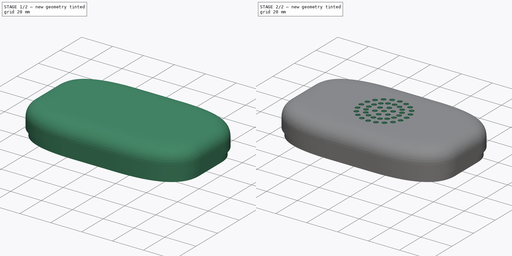
[diagram: build sequence overview — one tinted view per stage of 2, left to right]
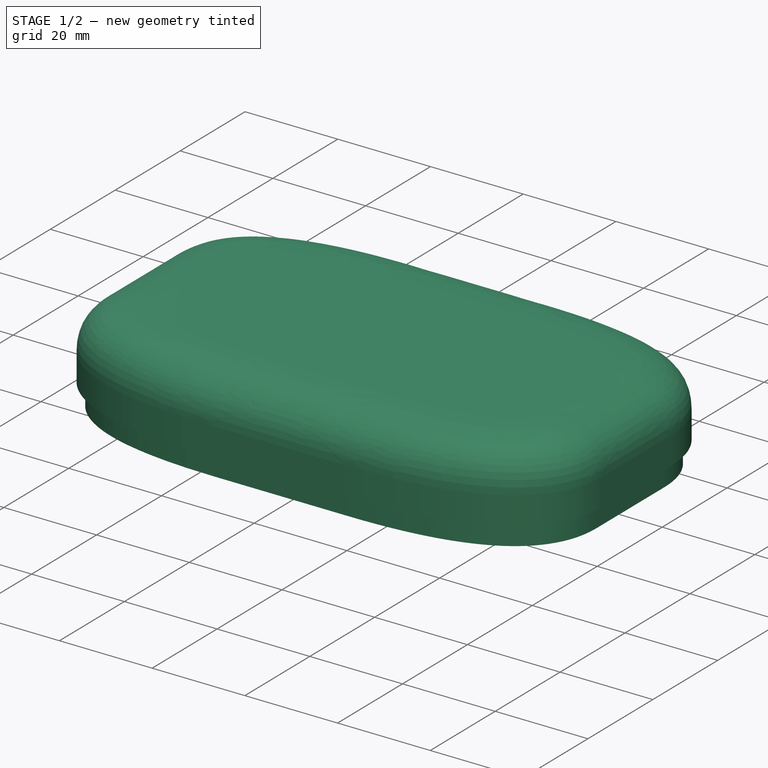
[diagram: stage 1 of 2 — iso view after this stage's code; geometry added in this stage tinted green]
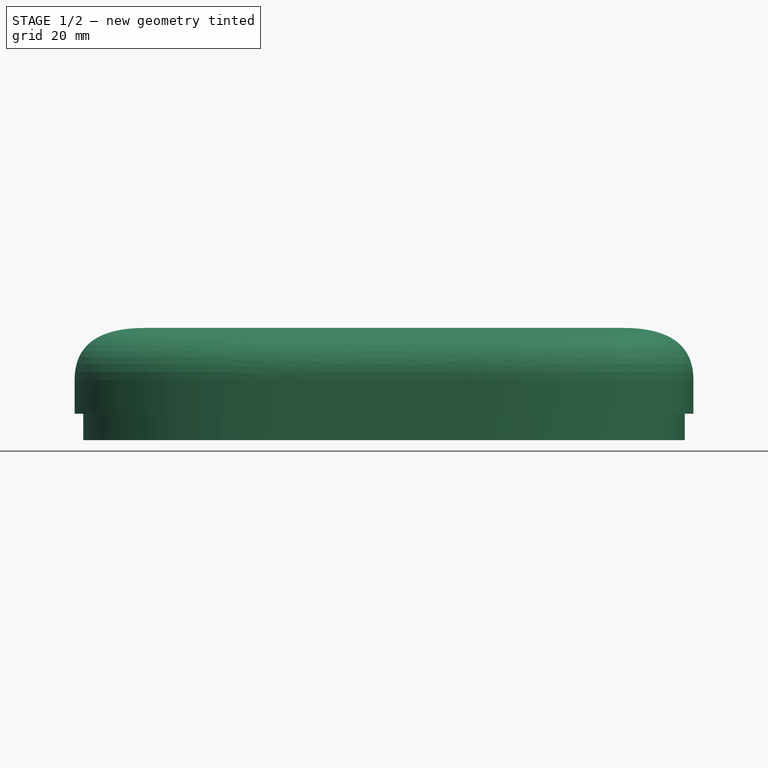
[diagram: stage 1 of 2 — front view after this stage's code; geometry added in this stage tinted green]
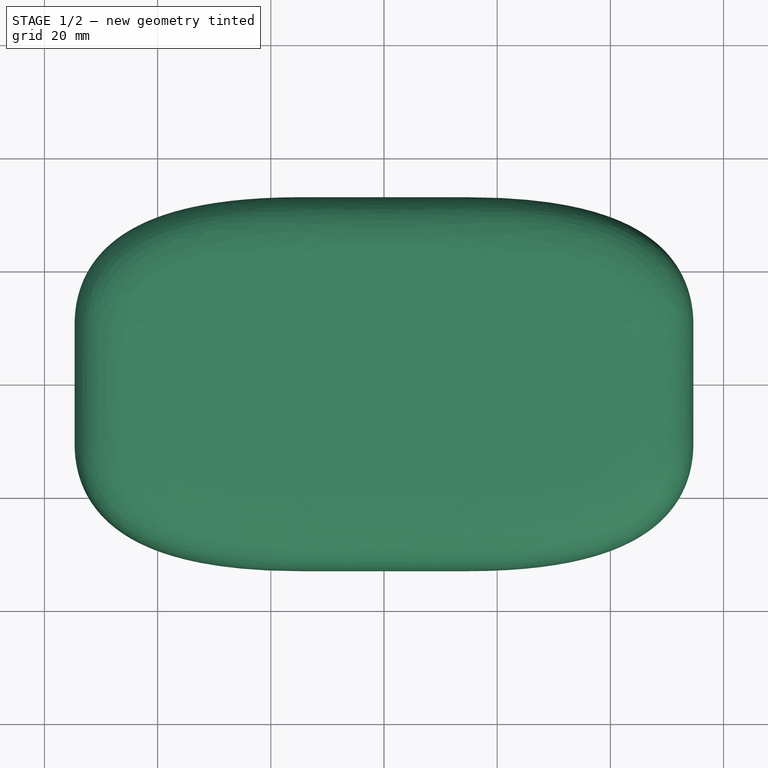
[diagram: stage 1 of 2 — top view after this stage's code; geometry added in this stage tinted green]
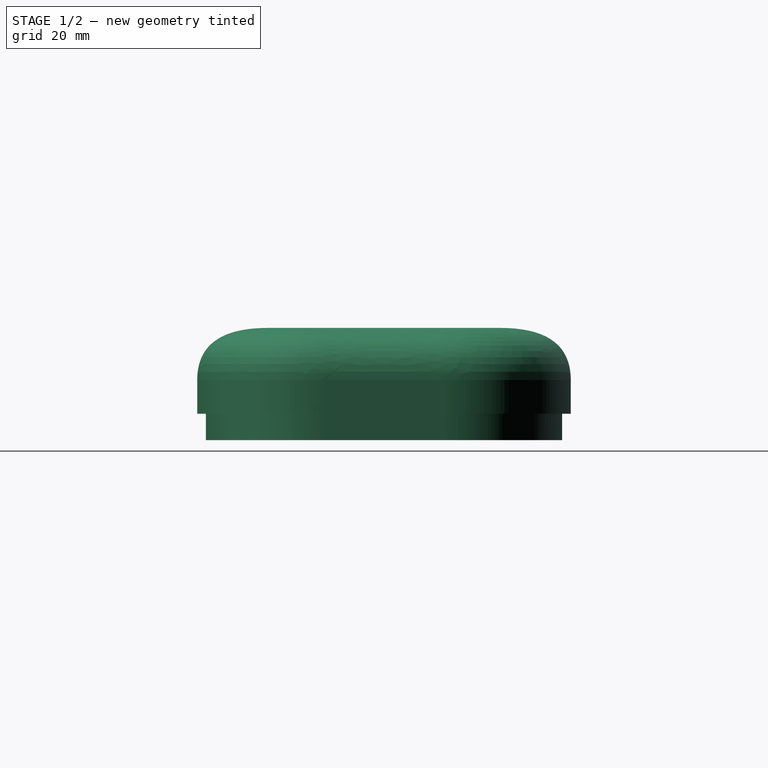
[diagram: stage 1 of 2 — right view after this stage's code; geometry added in this stage tinted green]
FCSTD DOCUMENT  (FreeCAD 1.0R39319 (Git))
Label: housing
License: All rights reserved
LicenseURL: https://en.wikipedia.org/wiki/All_rights_reserved
objects: Sketcher::SketchObject×3, PartDesign::Mirrored×2, PartDesign::AdditivePipe×1, PartDesign::Pad×1, PartDesign::Pocket×1, PartDesign::MultiTransform×1, PartDesign::Body×1
note: 22 computed .brp shape members not serialized (recipe doc carries the construction recipe); baked Part::Feature solids carry a one-line shape summary decoded from their .brp

FEATURE [Sketcher::SketchObject] Sketch
  ArcFitTolerance = 1e-06
  AttachmentSupport = -> [XY_Plane]
  FullyConstrained = false
  MakeInternals = false
  MapMode = 5
  sketch-geometry (25):
    g0: LineSegment StartX=-14.5265 StartY=30 StartZ=0 EndX=14.5265 EndY=30 EndZ=0
    g1: LineSegment StartX=51.6733 StartY=10.4024 StartZ=0 EndX=51.6733 EndY=-10.4024 EndZ=0
    g2: LineSegment StartX=14.5265 StartY=-30 StartZ=0 EndX=-14.5265 EndY=-30 EndZ=0
    g3: Circle [constr] CenterX=51.6733 CenterY=30 CenterZ=0 NormalX=0 NormalY=0 NormalZ=1 AngleXU=0 Radius=0.849394
    g4: BSplineCurve PolesCount=3 KnotsCount=2 Degree=2 IsPeriodic=0
    g5: GeomPoint [constr] X=14.5265 Y=30 Z=0
    g6: GeomPoint [constr] X=51.6733 Y=10.4024 Z=0
    g7: Circle [constr] CenterX=51.6733 CenterY=-10.4024 CenterZ=0 NormalX=0 NormalY=0 NormalZ=1 AngleXU=0 Radius=1
    g8: Circle [constr] CenterX=51.6733 CenterY=-30 CenterZ=0 NormalX=0 NormalY=0 NormalZ=1 AngleXU=0 Radius=1
    g9: Circle [constr] CenterX=14.5265 CenterY=-30 CenterZ=0 NormalX=0 NormalY=0 NormalZ=1 AngleXU=0 Radius=1
    g10: BSplineCurve PolesCount=3 KnotsCount=2 Degree=2 IsPeriodic=0
    g11: GeomPoint [constr] X=51.6733 Y=-10.4024 Z=0
    g12: GeomPoint [constr] X=14.5265 Y=-30 Z=0
    g13: LineSegment StartX=-51.6733 StartY=10.4024 StartZ=0 EndX=-51.6733 EndY=-10.4024 EndZ=0
    g14: Circle [constr] CenterX=-51.6733 CenterY=-10.4024 CenterZ=0 NormalX=0 NormalY=0 NormalZ=1 AngleXU=0 Radius=1
    g15: Circle [constr] CenterX=-51.6733 CenterY=-30 CenterZ=0 NormalX=0 NormalY=0 NormalZ=1 AngleXU=0 Radius=1
    g16: Circle [constr] CenterX=-14.5265 CenterY=-30 CenterZ=0 NormalX=0 NormalY=0 NormalZ=1 AngleXU=0 Radius=1
    g17: BSplineCurve PolesCount=3 KnotsCount=2 Degree=2 IsPeriodic=0
    g18: GeomPoint [constr] X=-51.6733 Y=-10.4024 Z=0
    g19: GeomPoint [constr] X=-14.5265 Y=-30 Z=0
    g20: Circle [constr] CenterX=-51.6733 CenterY=10.4024 CenterZ=0 NormalX=0 NormalY=0 NormalZ=1 AngleXU=0 Radius=0.989207
    g21: Circle [constr] CenterX=-51.6733 CenterY=30 CenterZ=0 NormalX=0 NormalY=0 NormalZ=1 AngleXU=0 Radius=0.989207
    g22: BSplineCurve PolesCount=3 KnotsCount=2 Degree=2 IsPeriodic=0
    g23: GeomPoint [constr] X=-51.6733 Y=10.4024 Z=0
    g24: GeomPoint [constr] X=-14.5265 Y=30 Z=0
  constraints (48):
    c: Horizontal(g0)
    c: InternalAlignment(g3,g4)
    c: InternalAlignment(g5,g4)
    c: InternalAlignment(g6,g4)
    c: Equal(g7,g8)
    c: Equal(g7,g9)
    c: InternalAlignment(g7,g10)
    c: InternalAlignment(g8,g10)
    c: InternalAlignment(g9,g10)
    c: InternalAlignment(g11,g10)
    c: InternalAlignment(g12,g10)
    c: Coincident(g7,g1)
    c: Coincident(g9,g2)
    c: Horizontal(g3,g4)
    c: Vertical(g3,g4)
    c: Vertical(g8,g10)
    c: Horizontal(g8,g10)
    c: Vertical(g4,g10)
    c: Equal(g0,g2)
    c: Equal(g1,g13)
    c: Equal(g14,g15)
    c: Equal(g14,g16)
    c: InternalAlignment(g14,g17)
    c: InternalAlignment(g15,g17)
    c: InternalAlignment(g16,g17)
    c: InternalAlignment(g18,g17)
    c: InternalAlignment(g19,g17)
    c: Coincident(g14,g13)
    c: Coincident(g16,g2)
    c: Horizontal(g15,g17)
    c: Vertical(g17,g15)
    c: Symmetric(g0,g10,g-1)
    c: Coincident(g0,g4)
    c: Horizontal(g2)
    c: Symmetric(g17,g1,g-1)
    c: Coincident(g1,g4)
    c: Vertical(g1)
    c: Equal(g20,g21)
    c: InternalAlignment(g20,g22)
    c: InternalAlignment(g21,g22)
    c: InternalAlignment(g23,g22)
    c: InternalAlignment(g24,g22)
    c: Coincident(g20,g13)
    c: Coincident(g0,g22)
    c: Horizontal(g21,g0)
    c: Vertical(g21,g22)
    c: Symmetric(g22,g17,g-1)
    c: DistanceY(g-1,g0) = 30
FEATURE [Sketcher::SketchObject] Sketch001
  ArcFitTolerance = 1e-06
  AttachmentOffset = pos=(30,0,0) rot=(0,0,1;0rad)
  AttachmentSupport = -> [YZ_Plane]
  FullyConstrained = false
  MakeInternals = false
  MapMode = 5
  Placement = pos=(0,30,0) rot=(0.57735,0.57735,0.57735;2.0944rad)
  sketch-geometry (19):
    g0: LineSegment StartX=0 StartY=-4.65873 StartZ=0 EndX=0 EndY=6.0166 EndZ=0
    g1: LineSegment StartX=-9.48361 StartY=12.1677 StartZ=0 EndX=-9.48361 EndY=15.1677 EndZ=0
    g2: LineSegment StartX=3 StartY=5.95911 StartZ=0 EndX=3 EndY=0 EndZ=0
    g3: LineSegment StartX=3 StartY=0 StartZ=0 EndX=1.47266 EndY=0 EndZ=0
    g4: LineSegment StartX=1.47266 StartY=0 StartZ=0 EndX=1.47266 EndY=-4.65873 EndZ=0
    g5: LineSegment StartX=1.47266 StartY=-4.65873 StartZ=0 EndX=0 EndY=-4.65873 EndZ=0
    g6: Circle [constr] CenterX=-9.48361 CenterY=12.1677 CenterZ=0 NormalX=0 NormalY=0 NormalZ=1 AngleXU=0 Radius=1
    g7: Circle [constr] CenterX=0 CenterY=12.1677 CenterZ=0 NormalX=0 NormalY=0 NormalZ=1 AngleXU=0 Radius=1
    g8: Circle [constr] CenterX=0 CenterY=6.0166 CenterZ=0 NormalX=0 NormalY=0 NormalZ=1 AngleXU=0 Radius=1
    g9: BSplineCurve PolesCount=3 KnotsCount=2 Degree=2 IsPeriodic=0
    g10: GeomPoint [constr] X=-9.48361 Y=12.1677 Z=0
    g11: GeomPoint [constr] X=0 Y=6.0166 Z=0
    g12: Circle [constr] CenterX=-9.48361 CenterY=15.1677 CenterZ=0 NormalX=0 NormalY=0 NormalZ=1 AngleXU=0 Radius=1
    g13: Circle [constr] CenterX=3 CenterY=15.1677 CenterZ=0 NormalX=0 NormalY=0 NormalZ=1 AngleXU=0 Radius=1
    g14: Circle [constr] CenterX=3 CenterY=5.95911 CenterZ=0 NormalX=0 NormalY=0 NormalZ=1 AngleXU=0 Radius=1
    g15: BSplineCurve PolesCount=3 KnotsCount=2 Degree=2 IsPeriodic=0
    g16: GeomPoint [constr] X=-9.48361 Y=15.1677 Z=0
    g17: GeomPoint [constr] X=3 Y=5.95911 Z=0
    g18: LineSegment [constr] StartX=3 StartY=0 StartZ=0 EndX=0 EndY=0 EndZ=0
  constraints (38):
    c: PointOnObject(g0,g-2)
    c: PointOnObject(g0,g-2)
    c: Vertical(g1)
    c: PointOnObject(g2,g-1)
    c: Vertical(g2)
    c: Coincident(g2,g3)
    c: PointOnObject(g3,g-1)
    c: Coincident(g3,g4)
    c: Vertical(g4)
    c: Coincident(g4,g5)
    c: Coincident(g5,g0)
    c: Horizontal(g5)
    c: Equal(g6,g7)
    c: Equal(g6,g8)
    c: InternalAlignment(g6,g9)
    c: InternalAlignment(g7,g9)
    c: InternalAlignment(g8,g9)
    c: InternalAlignment(g10,g9)
    c: InternalAlignment(g11,g9)
    c: Coincident(g6,g1)
    c: PointOnObject(g7,g-2)
    c: Coincident(g8,g0)
    c: Equal(g12,g13)
    c: Equal(g12,g14)
    c: InternalAlignment(g12,g15)
    c: InternalAlignment(g13,g15)
    c: InternalAlignment(g14,g15)
    c: InternalAlignment(g16,g15)
    c: InternalAlignment(g17,g15)
    c: Coincident(g12,g1)
    c: Coincident(g14,g2)
    c: Coincident(g2,g18)
    c: Coincident(g18,g-1)
    c: Equal(g18,g1)
    c: Horizontal(g13,g15)
    c: Horizontal(g7,g9)
    c: Vertical(g13,g15)
    c: DistanceY(g1,g1) = 3
FEATURE [PartDesign::AdditivePipe] AdditivePipe
  AuxilleryCurvelinear = true
  AuxillerySpineTangent = false
  Binormal = (0,0,0)
  Mode = 0
  Placement = pos=(0,0,0) rot=(1,1,1;2.0944rad)
  Profile = -> Sketch001
  Refine = true
  Spine = -> Sketch
  SpineTangent = false
  Suppressed = false
  Transformation = 0
  Transition = 0
FEATURE [PartDesign::Pad] Pad
  BaseFeature = -> AdditivePipe
  Direction = (0,4e-16,1)
  Length = 3
  Length2 = 10
  Placement = pos=(0,0,0) rot=(1,1,1;2.0944rad)
  Profile = -> AdditivePipe [Edge73,Edge84,Edge9,Edge18,Edge29,Edge40,Edge51,Edge62]
  Refine = true
  Reversed = true
  Suppressed = false
  Type = 0
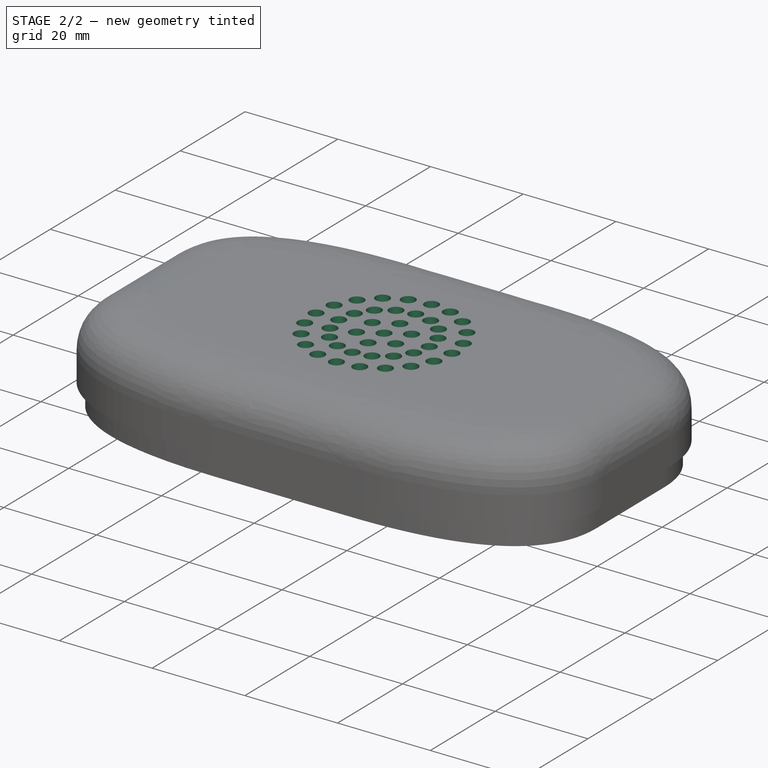
[diagram: stage 2 of 2 — iso view after this stage's code; geometry added in this stage tinted green]
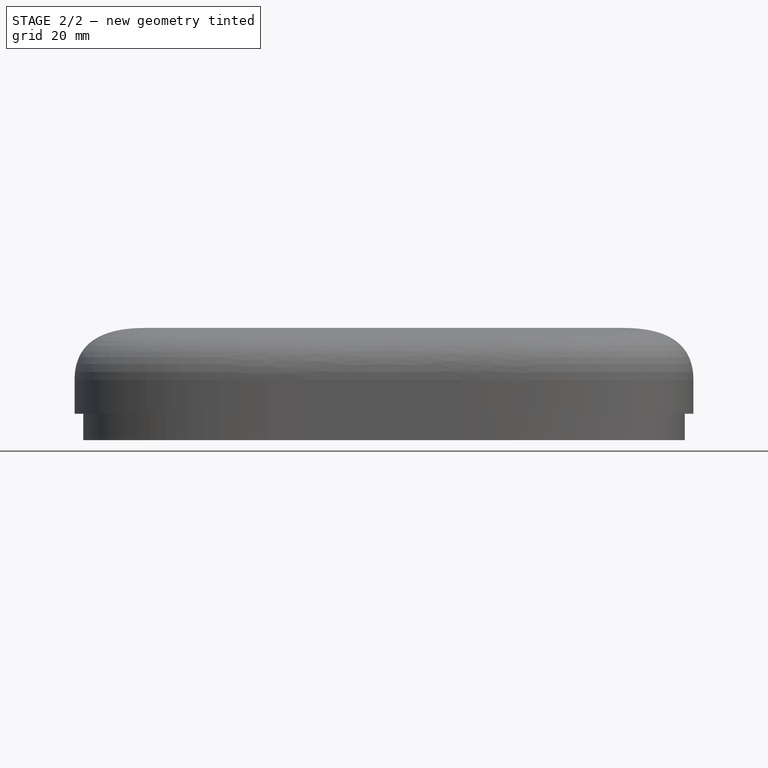
[diagram: stage 2 of 2 — front view after this stage's code; geometry added in this stage tinted green]
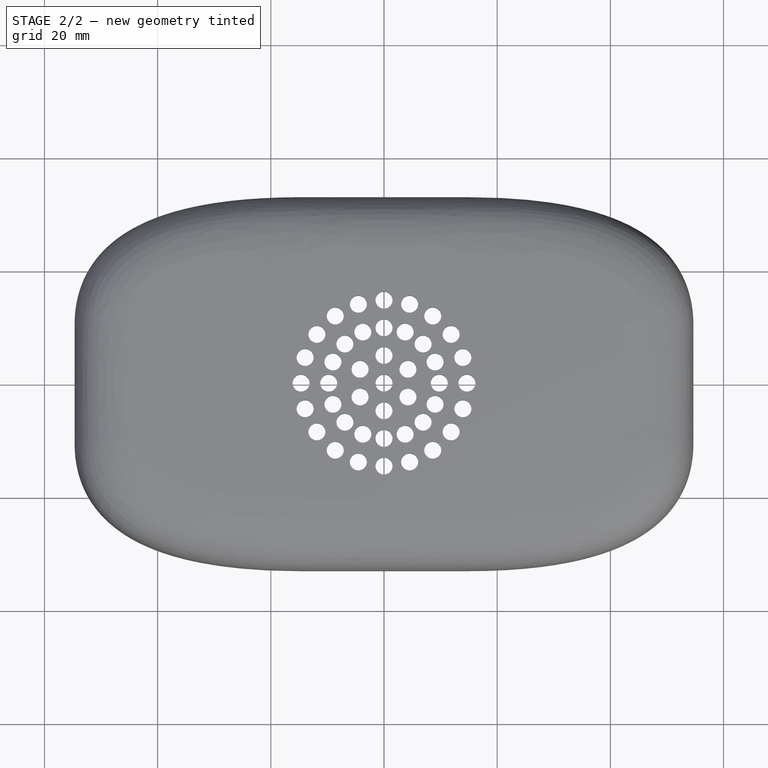
[diagram: stage 2 of 2 — top view after this stage's code; geometry added in this stage tinted green]
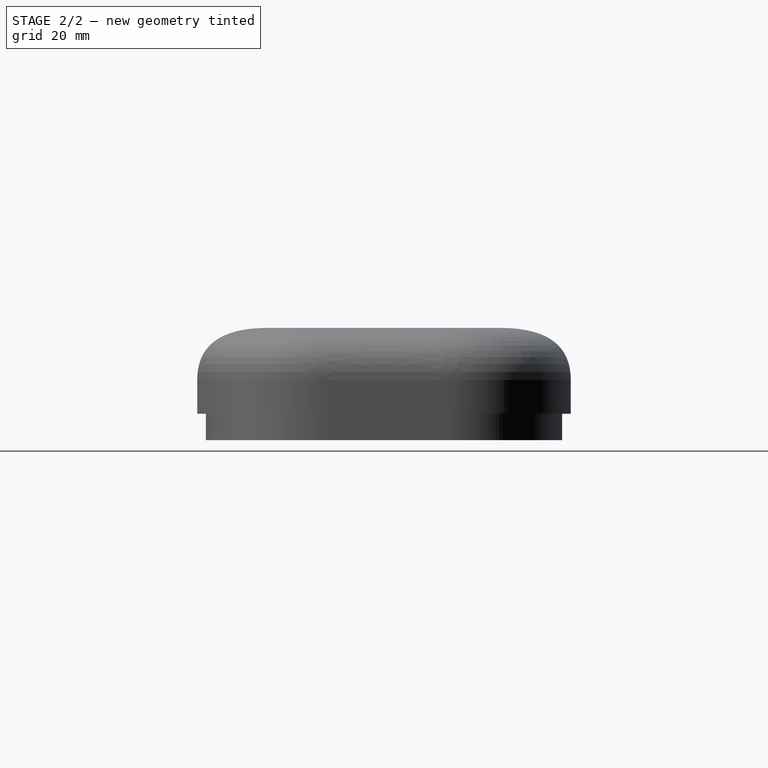
[diagram: stage 2 of 2 — right view after this stage's code; geometry added in this stage tinted green]
FEATURE [Sketcher::SketchObject] Sketch002
  ArcFitTolerance = 1e-06
  AttachmentSupport = -> [XY_Plane]
  FullyConstrained = false
  MakeInternals = false
  MapMode = 5
  sketch-geometry (32):
    g0: Circle CenterX=0 CenterY=0 CenterZ=0 NormalX=0 NormalY=0 NormalZ=1 AngleXU=0 Radius=1.5
    g1: Circle CenterX=0 CenterY=4.88548 CenterZ=0 NormalX=0 NormalY=0 NormalZ=1 AngleXU=0 Radius=1.5
    g2: Circle CenterX=6e-16 CenterY=9.77097 CenterZ=0 NormalX=0 NormalY=0 NormalZ=1 AngleXU=0 Radius=1.5
    g3: Circle CenterX=9e-16 CenterY=14.6565 CenterZ=0 NormalX=0 NormalY=0 NormalZ=1 AngleXU=0 Radius=1.5
    g4: ArcOfCircle [constr] CenterX=0 CenterY=0 CenterZ=0 NormalX=0 NormalY=0 NormalZ=1 AngleXU=0 Radius=4.88548 StartAngle=0 EndAngle=1.5708
    g5: ArcOfCircle [constr] CenterX=0 CenterY=0 CenterZ=0 NormalX=0 NormalY=0 NormalZ=1 AngleXU=0 Radius=9.77097 StartAngle=0 EndAngle=1.5708
    g6: ArcOfCircle [constr] CenterX=0 CenterY=0 CenterZ=0 NormalX=0 NormalY=0 NormalZ=1 AngleXU=0 Radius=14.6565 StartAngle=0 EndAngle=1.5708
    g7: LineSegment [constr] StartX=9e-16 StartY=14.6565 StartZ=0 EndX=6e-16 EndY=9.77097 EndZ=0
    g8: LineSegment [constr] StartX=6e-16 StartY=9.77097 StartZ=0 EndX=0 EndY=4.88548 EndZ=0
    g9: LineSegment [constr] StartX=0 StartY=4.88548 StartZ=0 EndX=0 EndY=0 EndZ=0
    g10: Circle CenterX=4.52909 CenterY=13.9391 CenterZ=0 NormalX=0 NormalY=0 NormalZ=1 AngleXU=0 Radius=1.5
    g11: Circle CenterX=8.61485 CenterY=11.8573 CenterZ=0 NormalX=0 NormalY=0 NormalZ=1 AngleXU=0 Radius=1.5
    g12: Circle CenterX=11.8573 CenterY=8.61485 CenterZ=0 NormalX=0 NormalY=0 NormalZ=1 AngleXU=0 Radius=1.5
    g13: Circle CenterX=13.9391 CenterY=4.52909 CenterZ=0 NormalX=0 NormalY=0 NormalZ=1 AngleXU=0 Radius=1.5
    g14: LineSegment [constr] StartX=9e-16 StartY=14.6565 StartZ=0 EndX=4.52909 EndY=13.9391 EndZ=0
    g15: LineSegment [constr] StartX=4.52909 StartY=13.9391 StartZ=0 EndX=8.61485 EndY=11.8573 EndZ=0
    g16: LineSegment [constr] StartX=8.61485 StartY=11.8573 StartZ=0 EndX=11.8573 EndY=8.61485 EndZ=0
    g17: LineSegment [constr] StartX=11.8573 StartY=8.61485 StartZ=0 EndX=13.9391 EndY=4.52909 EndZ=0
    g18: LineSegment [constr] StartX=13.9391 StartY=4.52909 StartZ=0 EndX=14.6565 EndY=0 EndZ=0
    g19: Circle CenterX=3.73919 CenterY=9.0272 CenterZ=0 NormalX=0 NormalY=0 NormalZ=1 AngleXU=0 Radius=1.5
    g20: Circle CenterX=6.90912 CenterY=6.90912 CenterZ=0 NormalX=0 NormalY=0 NormalZ=1 AngleXU=0 Radius=1.5
    g21: Circle CenterX=9.0272 CenterY=3.73919 CenterZ=0 NormalX=0 NormalY=0 NormalZ=1 AngleXU=0 Radius=1.5
    g22: LineSegment [constr] StartX=6e-16 StartY=9.77097 StartZ=0 EndX=3.73919 EndY=9.0272 EndZ=0
    g23: LineSegment [constr] StartX=3.73919 StartY=9.0272 StartZ=0 EndX=6.90912 EndY=6.90912 EndZ=0
    g24: LineSegment [constr] StartX=6.90912 StartY=6.90912 StartZ=0 EndX=9.0272 EndY=3.73919 EndZ=0
    g25: LineSegment [constr] StartX=9.0272 StartY=3.73919 StartZ=0 EndX=9.77097 EndY=0 EndZ=0
    g26: LineSegment [constr] StartX=0 StartY=4.88548 StartZ=0 EndX=2.44274 EndY=4.23095 EndZ=0
    g27: LineSegment [constr] StartX=2.44274 StartY=4.23095 StartZ=0 EndX=4.23095 EndY=2.44274 EndZ=0
    g28: LineSegment [constr] StartX=4.23095 StartY=2.44274 StartZ=0 EndX=4.88548 EndY=0 EndZ=0
    g29: Circle CenterX=4.23095 CenterY=2.44274 CenterZ=0 NormalX=0 NormalY=0 NormalZ=1 AngleXU=0 Radius=1.5
    g30: Circle CenterX=9.77097 CenterY=0 CenterZ=0 NormalX=0 NormalY=0 NormalZ=1 AngleXU=0 Radius=1.5
    g31: Circle CenterX=14.6565 CenterY=0 CenterZ=0 NormalX=0 NormalY=0 NormalZ=1 AngleXU=0 Radius=1.5
  constraints (78):
    c: Diameter(g0) = 3
    c: PointOnObject(g1,g-2)
    c: PointOnObject(g2,g-2)
    c: Coincident(g4,g0)
    c: Coincident(g4,g1)
    c: Coincident(g5,g0)
    c: Coincident(g5,g2)
    c: PointOnObject(g5,g-1)
    c: Coincident(g6,g0)
    c: PointOnObject(g6,g-2)
    c: PointOnObject(g6,g-1)
    c: Coincident(g3,g6)
    c: Coincident(g0,g-1)
    c: Equal(g1,g2)
    c: Equal(g2,g3)
    c: Equal(g3,g0)
    c: Coincident(g7,g3)
    c: Coincident(g7,g2)
    c: Coincident(g7,g8)
    c: Coincident(g8,g1)
    c: Coincident(g8,g9)
    c: Coincident(g9,g0)
    c: Equal(g7,g8)
    c: Equal(g8,g9)
    c: Equal(g10,g0)
    c: PointOnObject(g10,g6)
    c: Equal(g11,g0)
    c: PointOnObject(g11,g6)
    c: PointOnObject(g12,g6)
    c: PointOnObject(g13,g6)
    c: Coincident(g14,g3)
    c: Coincident(g14,g10)
    c: Coincident(g14,g15)
    c: Coincident(g15,g11)
    c: Coincident(g15,g16)
    c: Coincident(g16,g12)
    c: Coincident(g16,g17)
    c: Coincident(g17,g13)
    c: Coincident(g17,g18)
    c: Coincident(g18,g6)
    c: Equal(g14,g15)
    c: Equal(g15,g16)
    c: Equal(g16,g17)
    c: Equal(g17,g18)
    c: PointOnObject(g19,g5)
    c: PointOnObject(g20,g5)
    c: PointOnObject(g21,g5)
    c: Coincident(g22,g2)
    c: Coincident(g22,g19)
    c: Coincident(g22,g23)
    c: Coincident(g23,g20)
    c: Coincident(g23,g24)
    c: Coincident(g24,g21)
    c: Coincident(g24,g25)
    c: Coincident(g25,g5)
    c: Equal(g25,g24)
    c: Equal(g24,g23)
    c: Equal(g23,g22)
    c: Coincident(g26,g1)
    c: Coincident(g26,g27)
    c: Equal(g27,g26)
    c: PointOnObject(g26,g4)
    c: PointOnObject(g27,g4)
    c: PointOnObject(g4,g-1)
    c: Coincident(g27,g28)
    c: Coincident(g28,g4)
    c: Coincident(g29,g27)
    c: Equal(g27,g28)
    c: Coincident(g30,g5)
    c: Coincident(g31,g6)
    c: Equal(g31,g13)
    c: Equal(g13,g12)
    c: Equal(g30,g21)
    c: Equal(g21,g20)
    c: Equal(g29,g1)
    c: Equal(g19,g0)
    c: Equal(g20,g0)
    c: Equal(g12,g0)
FEATURE [PartDesign::Pocket] Pocket
  BaseFeature = -> Pad
  Direction = (0,0,-1)
  Length = 5
  Length2 = 5
  Placement = pos=(0,0,0) rot=(1,1,1;2.0944rad)
  Profile = -> Sketch002
  ReferenceAxis = -> Sketch002 [N_Axis]
  Refine = true
  Reversed = true
  Suppressed = false
  Type = 1
FEATURE [PartDesign::Mirrored] Mirrored
  MirrorPlane = -> YZ_Plane
  Placement = pos=(0,0,0) rot=(1,1,1;2.0944rad)
  Refine = true
  Suppressed = false
  TransformMode = 0
FEATURE [PartDesign::Mirrored] Mirrored001
  MirrorPlane = -> XZ_Plane
  Placement = pos=(0,0,0) rot=(1,1,1;2.0944rad)
  Refine = true
  Suppressed = false
  TransformMode = 0
FEATURE [PartDesign::MultiTransform] MultiTransform
  BaseFeature = -> Pocket
  Originals = -> [Pocket]
  Placement = pos=(0,0,0) rot=(1,1,1;2.0944rad)
  Refine = true
  Suppressed = false
  TransformMode = 0
  Transformations = -> [Mirrored,Mirrored001]
FEATURE [PartDesign::Body] Body
  AllowCompound = false
  Group = -> [Sketch,Sketch001,AdditivePipe,Pad,Sketch002,Pocket,MultiTransform,Mirrored,Mirrored001]
  Origin = -> Origin
  Tip = -> MultiTransform
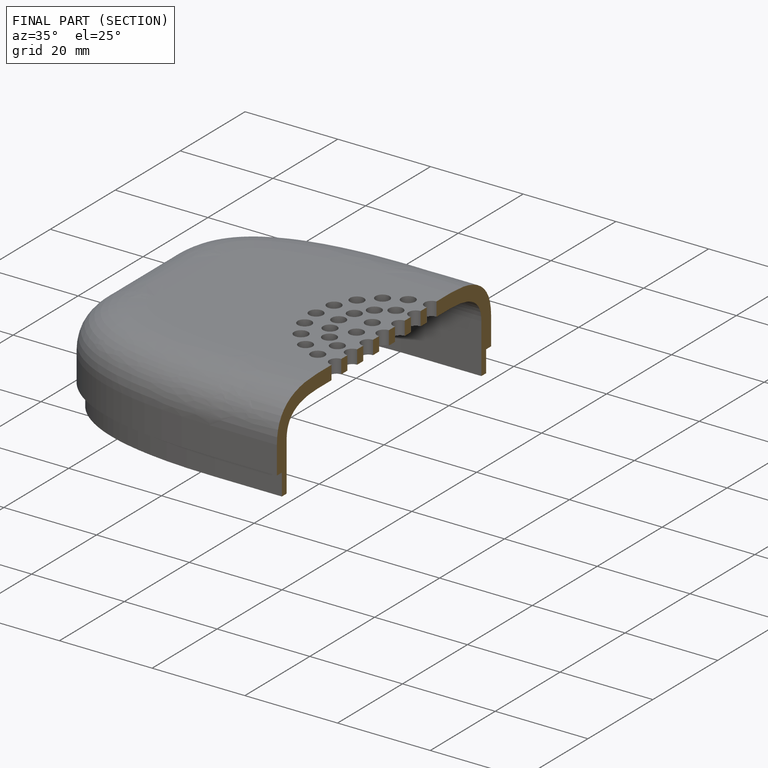
[diagram: finished part — half-section view (interior)]
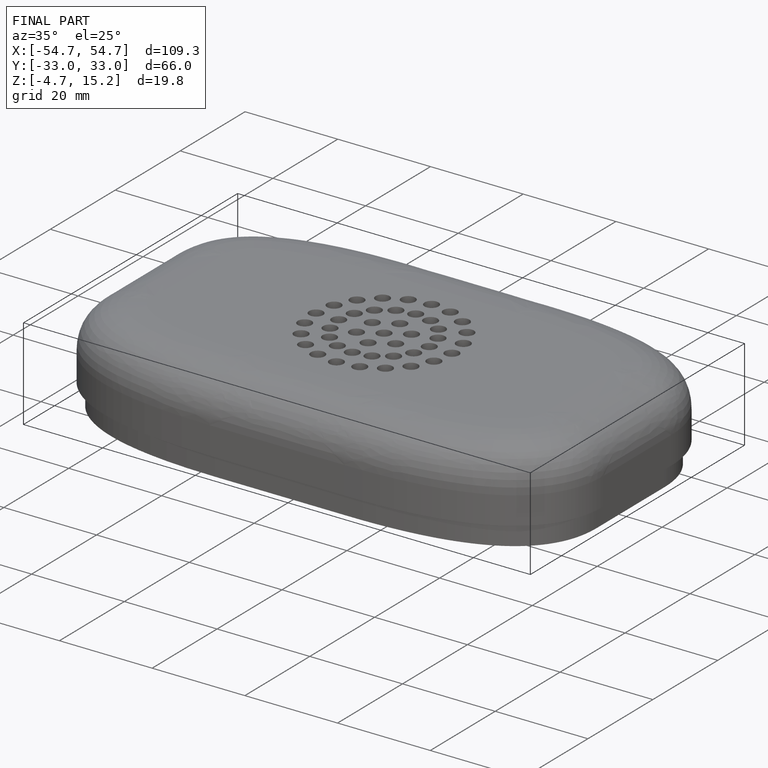
[diagram: finished part — iso view with bounding-box wireframe]
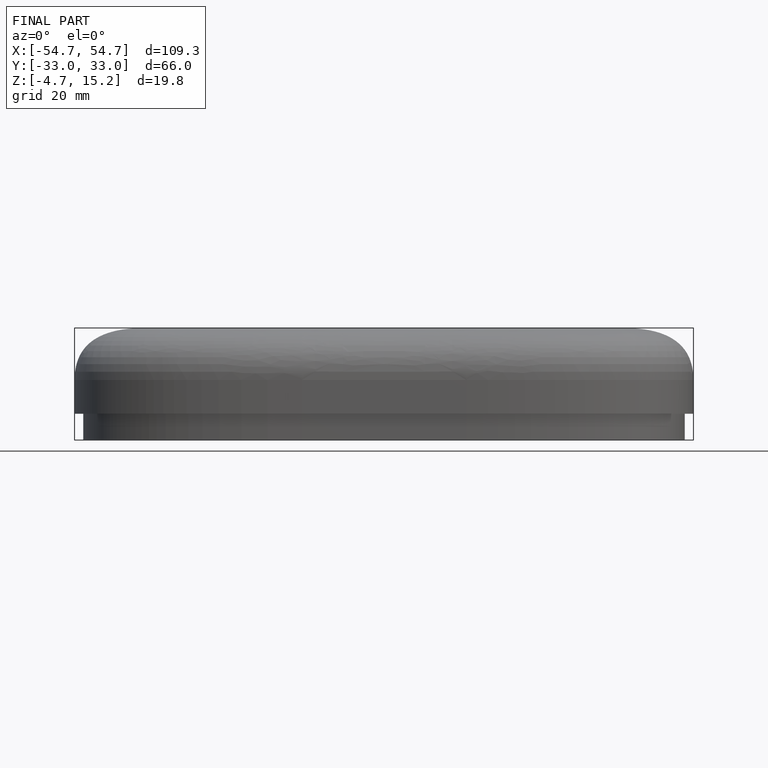
[diagram: finished part — front view with bounding-box wireframe]
